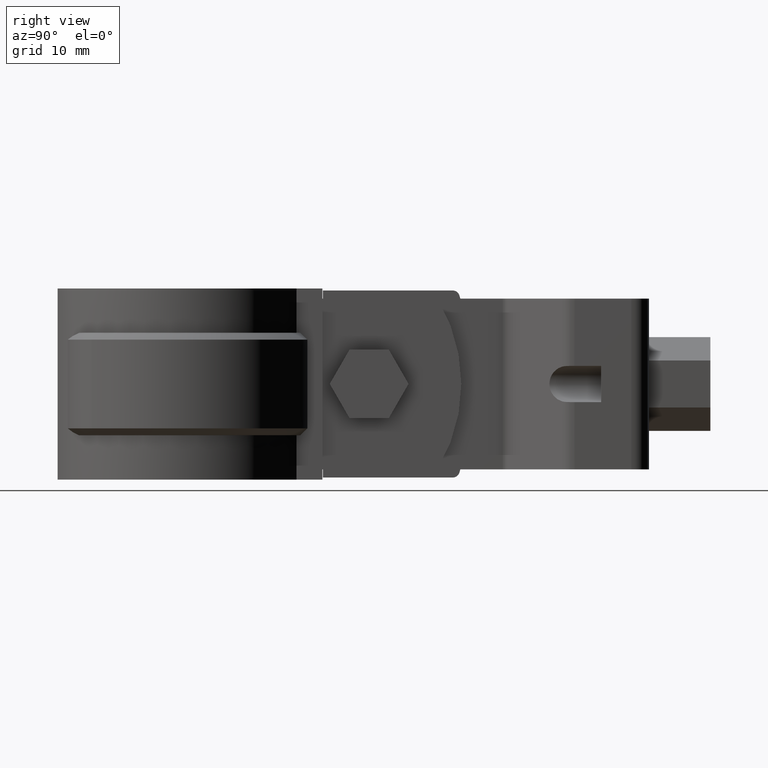
[diagram: clean part render]
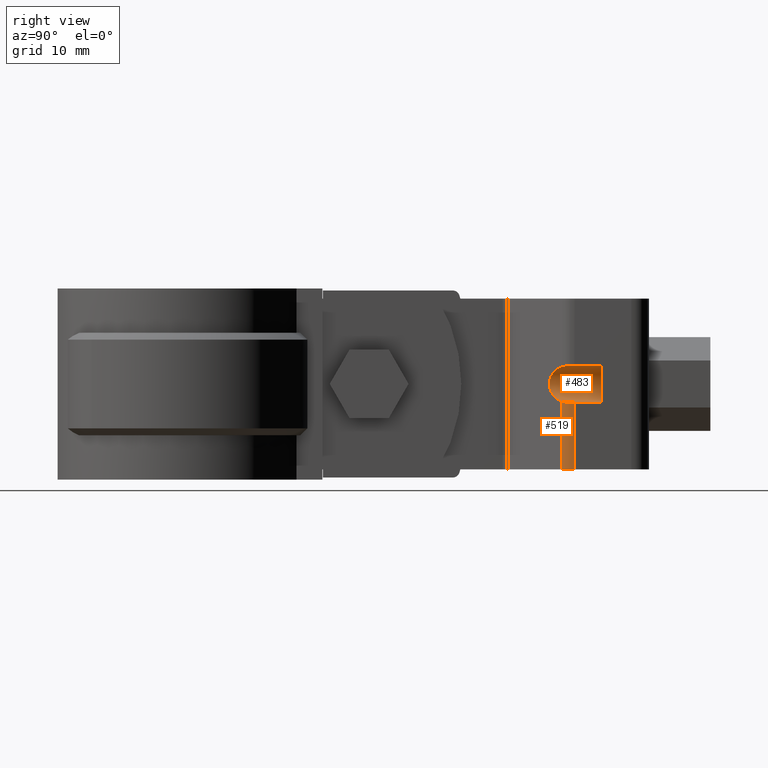
[diagram: same view with one multi-face feature highlighted, each face labeled with its STEP entity id]
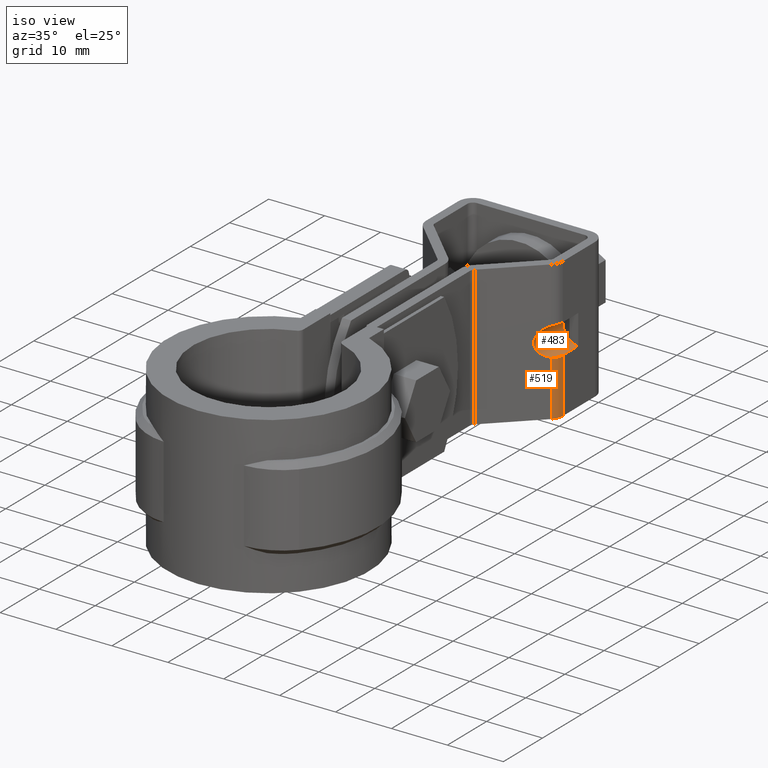
[diagram: same view with one multi-face feature highlighted, each face labeled with its STEP entity id]
A machine part, right view. The highlighted faces form ONE feature: a constant-radius fillet chain: 2 tangent blend faces with common blend radius 2.625 mm. The faces share edges in the B-rep.
A second angle (iso view) of the same feature is appended — it is thin or edge-on in the first view.
Their STEP definitions:
[1] entity #519 (Cylinder):
#519 = ADVANCED_FACE( '', ( #1016 ), #1017, .T. );
#1016 = FACE_OUTER_BOUND( '', #2097, .T. );
#1017 = CYLINDRICAL_SURFACE( '', #2098, 2.59999999999999 );
#2097 = EDGE_LOOP( '', ( #4596, #4597, #4598, #4599 ) );
#2098 = AXIS2_PLACEMENT_3D( '', #4600, #4601, #4602 );
#4596 = ORIENTED_EDGE( '', *, *, #6442, .T. );
#4597 = ORIENTED_EDGE( '', *, *, #6435, .T. );
#4598 = ORIENTED_EDGE( '', *, *, #6369, .F. );
#4599 = ORIENTED_EDGE( '', *, *, #6350, .T. );
#4600 = CARTESIAN_POINT( '', ( 9.65000010622100, 57.6950965643771, 1.73799585834189E-008 ) );
#4601 = DIRECTION( '', ( -3.82133362428794E-011, -1.31468003150562E-010, 1.00000000000000 ) );
#4602 = DIRECTION( '', ( 7.94778790044289E-010, 1.00000000000000, 1.31468003180933E-010 ) );
#6350 = EDGE_CURVE( '', #7523, #7520, #7524, .T. );
#6369 = EDGE_CURVE( '', #7523, #7554, #7555, .T. );
#6435 = EDGE_CURVE( '', #7658, #7554, #7659, .T. );
#6442 = EDGE_CURVE( '', #7520, #7658, #7668, .T. );
#7520 = VERTEX_POINT( '', #10617 );
#7523 = VERTEX_POINT( '', #10620 );
#7524 = B_SPLINE_CURVE_WITH_KNOTS( '', 3, ( #10621, #10622, #10623, #10624, #10625, #10626, #10627, #10628, #10629, #10630 ), .UNSPECIFIED., .F., .F., ( 4, 2, 2, 2, 4 ), ( 0.000000000000000, 0.000517346174284563, 0.00103469234856913, 0.00155203852285369, 0.00206938469713825 ), .UNSPECIFIED. );
#7554 = VERTEX_POINT( '', #10687 );
#7555 = LINE( '', #10688, #10689 );
#7658 = VERTEX_POINT( '', #10859 );
#7659 = CIRCLE( '', #10860, 2.59999999999999 );
#7668 = LINE( '', #10873, #10874 );
#10617 = CARTESIAN_POINT( '', ( 11.4656420776956, 55.8340634571620, -15.0312610290936 ) );
#10620 = CARTESIAN_POINT( '', ( 12.2500001067999, 57.6950965643023, -15.1499999825207 ) );
#10621 = CARTESIAN_POINT( '', ( 12.2500001067999, 57.6950965643023, -15.1499999825207 ) );
#10622 = CARTESIAN_POINT( '', ( 12.2500001066609, 57.5202065000541, -15.1499999825436 ) );
#10623 = CARTESIAN_POINT( '', ( 12.2325331419325, 57.3482640921625, -15.1501636785717 ) );
#10624 = CARTESIAN_POINT( '', ( 12.1640564587029, 57.0100489022086, -15.1488273457917 ) );
#10625 = CARTESIAN_POINT( '', ( 12.1121298178247, 56.8419180539676, -15.1472759355028 ) );
#10626 = CARTESIAN_POINT( '', ( 11.9772120419526, 56.5228845988396, -15.1367906188936 ) );
#10627 = CARTESIAN_POINT( '', ( 11.8947255762084, 56.3718733795527, -15.1279277661909 ) );
#10628 = CARTESIAN_POINT( '', ( 11.7003963091689, 56.0871203698843, -15.0942551925534 ) );
#10629 = CARTESIAN_POINT( '', ( 11.5880225352707, 55.9534590198205, -15.0691828761256 ) );
#10630 = CARTESIAN_POINT( '', ( 11.4656420776956, 55.8340634571620, -15.0312610290936 ) );
#10687 = CARTESIAN_POINT( '', ( 12.2500001071763, 57.6950965655974, -24.9999999825207 ) );
#10688 = CARTESIAN_POINT( '', ( 12.2500001062210, 57.6950965623107, 1.74793096663350E-008 ) );
#10689 = VECTOR( '', #12502, 1000.00000000000 );
#10859 = CARTESIAN_POINT( '', ( 11.4656420780765, 55.8340634584726, -24.9999999827953 ) );
#10860 = AXIS2_PLACEMENT_3D( '', #12604, #12605, #12606 );
#10873 = CARTESIAN_POINT( '', ( 11.4656420771212, 55.8340634551859, 1.72046682456184E-008 ) );
#10874 = VECTOR( '', #12617, 1000.00000000000 );
#12502 = DIRECTION( '', ( 3.82133362428794E-011, 1.31468003150562E-010, -1.00000000000000 ) );
#12604 = CARTESIAN_POINT( '', ( 9.65000010717633, 57.6950965676638, -24.9999999826200 ) );
#12605 = DIRECTION( '', ( -3.82133362428794E-011, -1.31468003150562E-010, 1.00000000000000 ) );
#12606 = DIRECTION( '', ( 0.698323834961612, -0.715781965073519, -6.74171421275957E-011 ) );
#12617 = DIRECTION( '', ( 3.82133362428794E-011, 1.31468003150562E-010, -1.00000000000000 ) );
[2] entity #483 (Cylinder):
#483 = ADVANCED_FACE( '', ( #938 ), #939, .F. );
#938 = FACE_OUTER_BOUND( '', #2019, .T. );
#939 = CYLINDRICAL_SURFACE( '', #2020, 2.64999999999997 );
#2019 = EDGE_LOOP( '', ( #4280, #4281, #4282, #4283, #4284, #4285, #4286, #4287 ) );
#2020 = AXIS2_PLACEMENT_3D( '', #4288, #4289, #4290 );
#4280 = ORIENTED_EDGE( '', *, *, #6349, .F. );
#4281 = ORIENTED_EDGE( '', *, *, #6350, .F. );
#4282 = ORIENTED_EDGE( '', *, *, #6351, .T. );
#4283 = ORIENTED_EDGE( '', *, *, #6352, .T. );
#4284 = ORIENTED_EDGE( '', *, *, #6353, .T. );
#4285 = ORIENTED_EDGE( '', *, *, #6354, .T. );
#4286 = ORIENTED_EDGE( '', *, *, #6355, .F. );
#4287 = ORIENTED_EDGE( '', *, *, #6356, .F. );
#4288 = CARTESIAN_POINT( '', ( 12.2500001018538, 51.5992907648396, -12.4999999833221 ) );
#4289 = DIRECTION( '', ( -7.94778790044289E-010, -1.00000000000000, -1.31468003180933E-010 ) );
#4290 = DIRECTION( '', ( -3.82343921266954E-011, -1.31468003150545E-010, 1.00000000000000 ) );
#6349 = EDGE_CURVE( '', #7520, #7521, #7522, .T. );
#6350 = EDGE_CURVE( '', #7523, #7520, #7524, .T. );
#6351 = EDGE_CURVE( '', #7523, #7525, #7526, .T. );
#6352 = EDGE_CURVE( '', #7525, #7527, #7528, .T. );
#6353 = EDGE_CURVE( '', #7527, #7529, #7530, .T. );
#6354 = EDGE_CURVE( '', #7529, #7531, #7532, .T. );
#6355 = EDGE_CURVE( '', #7533, #7531, #7534, .T. );
#6356 = EDGE_CURVE( '', #7521, #7533, #7535, .T. );
#7520 = VERTEX_POINT( '', #10617 );
#7521 = VERTEX_POINT( '', #10618 );
#7522 = ELLIPSE( '', #10619, 3.70224472166266, 2.64999999999997 );
#7523 = VERTEX_POINT( '', #10620 );
#7524 = B_SPLINE_CURVE_WITH_KNOTS( '', 3, ( #10621, #10622, #10623, #10624, #10625, #10626, #10627, #10628, #10629, #10630 ), .UNSPECIFIED., .F., .F., ( 4, 2, 2, 2, 4 ), ( 0.000000000000000, 0.000517346174284563, 0.00103469234856913, 0.00155203852285369, 0.00206938469713825 ), .UNSPECIFIED. );
#7525 = VERTEX_POINT( '', #10631 );
#7526 = LINE( '', #10632, #10633 );
#7527 = VERTEX_POINT( '', #10634 );
#7528 = CIRCLE( '', #10635, 2.64999999999997 );
#7529 = VERTEX_POINT( '', #10636 );
#7530 = CIRCLE( '', #10637, 2.64999999999997 );
#7531 = VERTEX_POINT( '', #10638 );
#7532 = CIRCLE( '', #10639, 2.64999999999997 );
#7533 = VERTEX_POINT( '', #10640 );
#7534 = LINE( '', #10641, #10642 );
#7535 = B_SPLINE_CURVE_WITH_KNOTS( '', 3, ( #10643, #10644, #10645, #10646, #10647, #10648, #10649, #10650 ), .UNSPECIFIED., .F., .F., ( 4, 2, 2, 4 ), ( 1.73472347597677E-018, 0.000516787748161295, 0.00103357549632259, 0.00206715099264519 ), .UNSPECIFIED. );
#10617 = CARTESIAN_POINT( '', ( 11.4656420776956, 55.8340634571620, -15.0312610290936 ) );
#10618 = CARTESIAN_POINT( '', ( 11.4656420775021, 55.8340634564965, -9.96873893649709 ) );
#10619 = AXIS2_PLACEMENT_3D( '', #12474, #12475, #12476 );
#10620 = CARTESIAN_POINT( '', ( 12.2500001067999, 57.6950965643023, -15.1499999825207 ) );
#10621 = CARTESIAN_POINT( '', ( 12.2500001067999, 57.6950965643023, -15.1499999825207 ) );
#10622 = CARTESIAN_POINT( '', ( 12.2500001066609, 57.5202065000541, -15.1499999825436 ) );
#10623 = CARTESIAN_POINT( '', ( 12.2325331419325, 57.3482640921625, -15.1501636785717 ) );
#10624 = CARTESIAN_POINT( '', ( 12.1640564587029, 57.0100489022086, -15.1488273457917 ) );
#10625 = CARTESIAN_POINT( '', ( 12.1121298178247, 56.8419180539676, -15.1472759355028 ) );
#10626 = CARTESIAN_POINT( '', ( 11.9772120419526, 56.5228845988396, -15.1367906188936 ) );
#10627 = CARTESIAN_POINT( '', ( 11.8947255762084, 56.3718733795527, -15.1279277661909 ) );
#10628 = CARTESIAN_POINT( '', ( 11.7003963091689, 56.0871203698843, -15.0942551925534 ) );
#10629 = CARTESIAN_POINT( '', ( 11.5880225352707, 55.9534590198205, -15.0691828761256 ) );
#10630 = CARTESIAN_POINT( '', ( 11.4656420776956, 55.8340634571620, -15.0312610290936 ) );
#10631 = CARTESIAN_POINT( '', ( 12.2500001099029, 61.5992907651880, -15.1499999820074 ) );
#10632 = CARTESIAN_POINT( '', ( 12.2500001019551, 51.5992907651880, -15.1499999833221 ) );
#10633 = VECTOR( '', #12477, 1000.00000000000 );
#10634 = CARTESIAN_POINT( '', ( 10.6500001098824, 61.5992907663890, -14.6124629994963 ) );
#10635 = AXIS2_PLACEMENT_3D( '', #12478, #12479, #12480 );
#10636 = CARTESIAN_POINT( '', ( 10.6500001097209, 61.5992907658336, -10.3875369646408 ) );
#10637 = AXIS2_PLACEMENT_3D( '', #12481, #12482, #12483 );
#10638 = CARTESIAN_POINT( '', ( 12.2500001097004, 61.5992907644912, -9.84999998200743 ) );
#10639 = AXIS2_PLACEMENT_3D( '', #12484, #12485, #12486 );
#10640 = CARTESIAN_POINT( '', ( 12.2500001065974, 57.6950965636056, -9.84999998252072 ) );
#10641 = CARTESIAN_POINT( '', ( 12.2500001017526, 51.5992907644912, -9.84999998332212 ) );
#10642 = VECTOR( '', #12487, 1000.00000000000 );
#10643 = CARTESIAN_POINT( '', ( 11.4656420775021, 55.8340634564965, -9.96873893649708 ) );
#10644 = CARTESIAN_POINT( '', ( 11.5880008646473, 55.9534378772659, -9.93082380440676 ) );
#10645 = CARTESIAN_POINT( '', ( 11.6979910779007, 56.0841368425446, -9.90626131294366 ) );
#10646 = CARTESIAN_POINT( '', ( 11.8919854055865, 56.3673314632513, -9.87244984460806 ) );
#10647 = CARTESIAN_POINT( '', ( 11.9765771514112, 56.5216566617159, -9.86327471480245 ) );
#10648 = CARTESIAN_POINT( '', ( 12.1789957085563, 56.9994895933930, -9.84749562326692 ) );
#10649 = CARTESIAN_POINT( '', ( 12.2500001063196, 57.3455547215584, -9.84999998256667 ) );
#10650 = CARTESIAN_POINT( '', ( 12.2500001065974, 57.6950965636056, -9.84999998252072 ) );
#12474 = CARTESIAN_POINT( '', ( 12.2500001058277, 56.5992907648398, -12.4999999826648 ) );
#12475 = DIRECTION( '', ( -0.698323834961609, 0.715781965073521, 6.74171070251485E-011 ) );
#12476 = DIRECTION( '', ( 0.715781965073521, 0.698323834961609, 1.19159693022799E-010 ) );
#12477 = DIRECTION( '', ( 7.94778790044288E-010, 1.00000000000000, 1.31468003180933E-010 ) );
#12478 = CARTESIAN_POINT( '', ( 12.2500001098016, 61.5992907648396, -12.4999999820074 ) );
#12479 = DIRECTION( '', ( 7.94778790044288E-010, 1.00000000000000, 1.31468003180933E-010 ) );
#12480 = DIRECTION( '', ( -3.82127899098248E-011, -1.31468003150563E-010, 1.00000000000000 ) );
#12481 = CARTESIAN_POINT( '', ( 12.2500001098016, 61.5992907648396, -12.4999999820074 ) );
#12482 = DIRECTION( '', ( 7.94778790044288E-010, 1.00000000000000, 1.31468003180933E-010 ) );
#12483 = DIRECTION( '', ( -3.82127899098248E-011, -1.31468003150563E-010, 1.00000000000000 ) );
#12484 = CARTESIAN_POINT( '', ( 12.2500001098016, 61.5992907648396, -12.4999999820074 ) );
#12485 = DIRECTION( '', ( 7.94778790044288E-010, 1.00000000000000, 1.31468003180933E-010 ) );
#12486 = DIRECTION( '', ( -3.82127899098248E-011, -1.31468003150563E-010, 1.00000000000000 ) );
#12487 = DIRECTION( '', ( 7.94778790044288E-010, 1.00000000000000, 1.31468003180933E-010 ) );